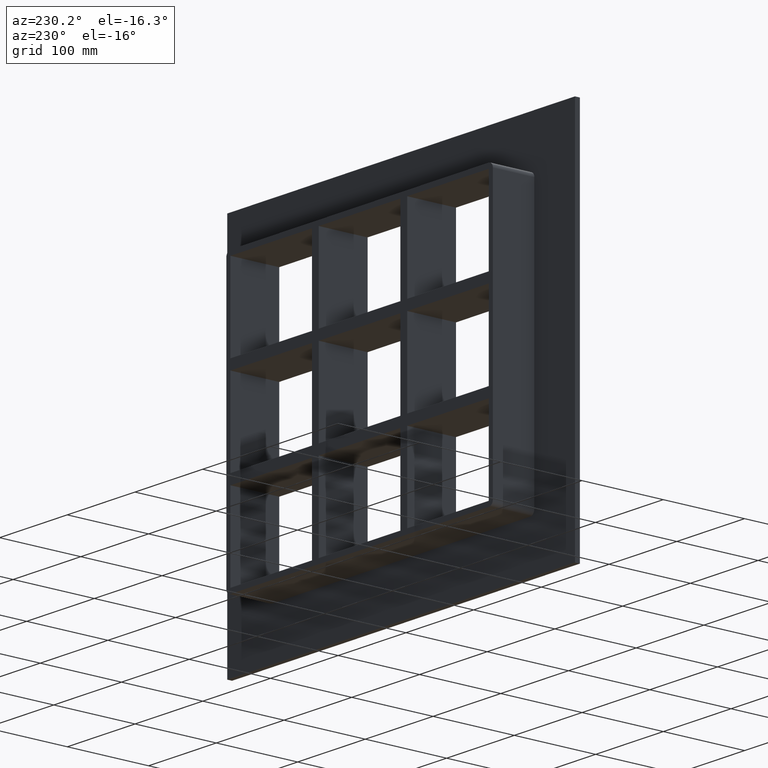
[diagram: clean part render]
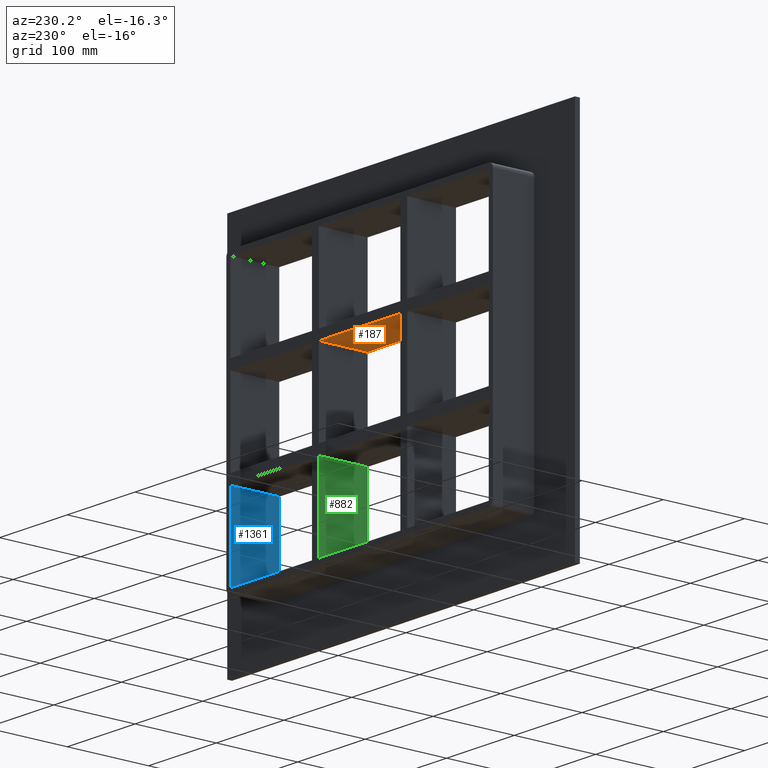
[diagram: same view with three faces highlighted in distinct colors, each labeled with its STEP entity id]
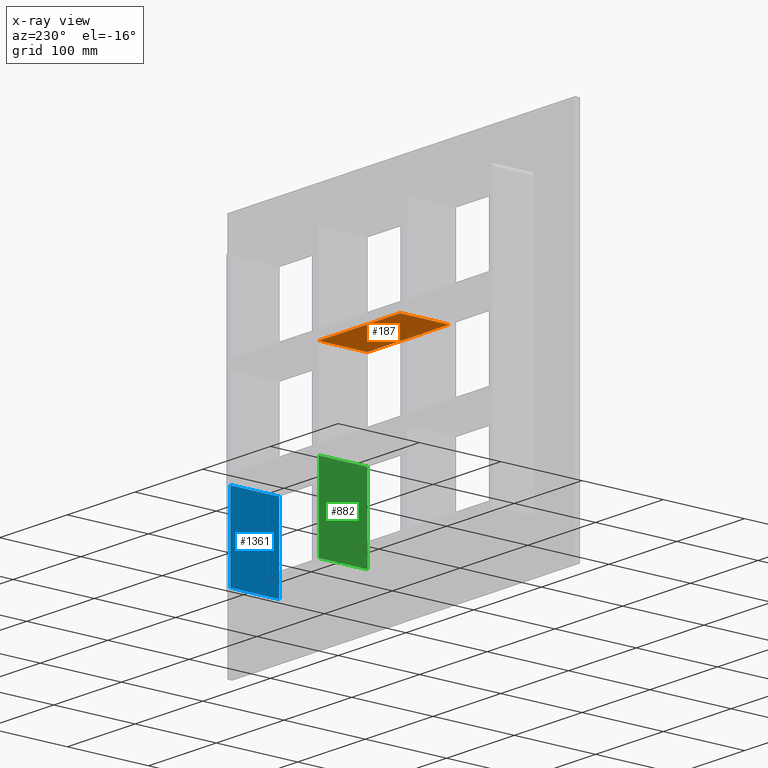
[diagram: x-ray of the same camera — body ghosted, the three highlighted faces saturated]
A machine part, auxiliary view with three faces highlighted in distinct colors.
The next image is the same camera in x-ray (body ghosted, the three faces saturated) — at least one of them is partly hidden behind the body in this view.
Their STEP definitions:

[orange] entity #187 — the highlighted planar face has unit normal (0, 0, -1).
#148=CARTESIAN_POINT('',(190.74999999999818,-3.0,50.49999999999072));
#149=DIRECTION('',(0.0,0.0,-1.0));
#150=DIRECTION('',(-1.0,0.0,0.0));
#151=AXIS2_PLACEMENT_3D('',#148,#149,#150);
#152=PLANE('',#151);
#153=CARTESIAN_POINT('',(60.249999999998671,-3.0,50.499999999990692));
#154=VERTEX_POINT('',#153);
#155=CARTESIAN_POINT('',(60.249999999998671,57.0,50.499999999990692));
#156=VERTEX_POINT('',#155);
#157=CARTESIAN_POINT('',(60.249999999998671,-3.0,50.499999999990671));
#158=DIRECTION('',(0.0,1.0,0.0));
#159=VECTOR('',#158,60.0);
#160=LINE('',#157,#159);
#161=EDGE_CURVE('',#154,#156,#160,.T.);
#162=ORIENTED_EDGE('',*,*,#161,.F.);
#163=CARTESIAN_POINT('',(-60.249999999996362,-3.0,50.499999999990663));
#164=VERTEX_POINT('',#163);
#165=CARTESIAN_POINT('',(60.249999999998664,-3.0,50.499999999990692));
#166=DIRECTION('',(-1.0,0.0,0.0));
#167=VECTOR('',#166,120.49999999999503);
#168=LINE('',#165,#167);
#169=EDGE_CURVE('',#154,#164,#168,.T.);
#170=ORIENTED_EDGE('',*,*,#169,.T.);
#171=CARTESIAN_POINT('',(-60.249999999996362,57.0,50.499999999990663));
#172=VERTEX_POINT('',#171);
#173=CARTESIAN_POINT('',(-60.249999999996355,57.0,50.499999999990656));
#174=DIRECTION('',(0.0,-1.0,0.0));
#175=VECTOR('',#174,60.0);
#176=LINE('',#173,#175);
#177=EDGE_CURVE('',#172,#164,#176,.T.);
#178=ORIENTED_EDGE('',*,*,#177,.F.);
#179=CARTESIAN_POINT('',(60.249999999998664,57.0,50.499999999990692));
#180=DIRECTION('',(-1.0,0.0,0.0));
#181=VECTOR('',#180,120.49999999999503);
#182=LINE('',#179,#181);
#183=EDGE_CURVE('',#156,#172,#182,.T.);
#184=ORIENTED_EDGE('',*,*,#183,.F.);
#185=EDGE_LOOP('',(#162,#170,#178,#184));
#186=FACE_OUTER_BOUND('',#185,.T.);
#187=ADVANCED_FACE('',(#186),#152,.T.);

[blue] entity #1361 — the highlighted planar face has unit normal (1, 0, 0).
#795=CARTESIAN_POINT('',(190.75000000000006,57.0,-163.50000000000006));
#796=VERTEX_POINT('',#795);
#803=CARTESIAN_POINT('',(190.74999999999818,57.0,-62.500000000009294));
#804=VERTEX_POINT('',#803);
#805=CARTESIAN_POINT('',(190.75000000000006,57.0,-163.50000000000003));
#806=DIRECTION('',(0.0,0.0,1.0));
#807=VECTOR('',#806,100.99999999999073);
#808=LINE('',#805,#807);
#809=EDGE_CURVE('',#796,#804,#808,.T.);
#968=CARTESIAN_POINT('',(190.75000000000006,-3.0,-163.50000000000006));
#969=VERTEX_POINT('',#968);
#976=CARTESIAN_POINT('',(190.75000000000006,56.999999999999993,-163.50000000000006));
#977=DIRECTION('',(0.0,-1.0,0.0));
#978=VECTOR('',#977,59.999999999999993);
#979=LINE('',#976,#978);
#980=EDGE_CURVE('',#796,#969,#979,.T.);
#1160=CARTESIAN_POINT('',(190.74999999999818,-3.0,-62.500000000009294));
#1161=VERTEX_POINT('',#1160);
#1168=CARTESIAN_POINT('',(190.75000000000006,-3.0,-62.500000000009294));
#1169=DIRECTION('',(0.0,0.0,-1.0));
#1170=VECTOR('',#1169,100.99999999999073);
#1171=LINE('',#1168,#1170);
#1172=EDGE_CURVE('',#1161,#969,#1171,.T.);
#1219=CARTESIAN_POINT('',(190.75000000000006,-3.0,-62.50000000000928));
#1220=DIRECTION('',(0.0,1.0,0.0));
#1221=VECTOR('',#1220,60.000000000000007);
#1222=LINE('',#1219,#1221);
#1223=EDGE_CURVE('',#1161,#804,#1222,.T.);
#1350=CARTESIAN_POINT('',(190.75000000000006,0.0,163.50000000000006));
#1351=DIRECTION('',(1.0,0.0,0.0));
#1352=DIRECTION('',(0.0,0.0,-1.0));
#1353=AXIS2_PLACEMENT_3D('',#1350,#1351,#1352);
#1354=PLANE('',#1353);
#1355=ORIENTED_EDGE('',*,*,#1223,.T.);
#1356=ORIENTED_EDGE('',*,*,#809,.F.);
#1357=ORIENTED_EDGE('',*,*,#980,.T.);
#1358=ORIENTED_EDGE('',*,*,#1172,.F.);
#1359=EDGE_LOOP('',(#1355,#1356,#1357,#1358));
#1360=FACE_OUTER_BOUND('',#1359,.T.);
#1361=ADVANCED_FACE('',(#1360),#1354,.F.);

[green] entity #882 — the highlighted planar face has unit normal (-1, 0, 0).
#748=CARTESIAN_POINT('',(60.249999999998707,57.0,-163.50000000000006));
#749=VERTEX_POINT('',#748);
#750=CARTESIAN_POINT('',(60.249999999998693,57.0,-62.500000000009322));
#751=VERTEX_POINT('',#750);
#752=CARTESIAN_POINT('',(60.249999999998707,57.0,-163.50000000000006));
#753=DIRECTION('',(0.0,0.0,1.0));
#754=VECTOR('',#753,100.99999999999072);
#755=LINE('',#752,#754);
#756=EDGE_CURVE('',#749,#751,#755,.T.);
#852=CARTESIAN_POINT('',(60.249999999998707,-3.0,-163.50000000000006));
#853=DIRECTION('',(-1.0,0.0,0.0));
#854=DIRECTION('',(0.0,0.0,1.0));
#855=AXIS2_PLACEMENT_3D('',#852,#853,#854);
#856=PLANE('',#855);
#857=CARTESIAN_POINT('',(60.249999999998693,-3.0,-62.500000000009322));
#858=VERTEX_POINT('',#857);
#859=CARTESIAN_POINT('',(60.249999999998693,57.0,-62.500000000009315));
#860=DIRECTION('',(0.0,-1.0,0.0));
#861=VECTOR('',#860,60.0);
#862=LINE('',#859,#861);
#863=EDGE_CURVE('',#751,#858,#862,.T.);
#864=ORIENTED_EDGE('',*,*,#863,.F.);
#865=ORIENTED_EDGE('',*,*,#756,.F.);
#866=CARTESIAN_POINT('',(60.249999999998707,-3.0,-163.50000000000006));
#867=VERTEX_POINT('',#866);
#868=CARTESIAN_POINT('',(60.249999999998707,-3.0,-163.50000000000006));
#869=DIRECTION('',(0.0,1.0,0.0));
#870=VECTOR('',#869,60.000000000000007);
#871=LINE('',#868,#870);
#872=EDGE_CURVE('',#867,#749,#871,.T.);
#873=ORIENTED_EDGE('',*,*,#872,.F.);
#874=CARTESIAN_POINT('',(60.249999999998707,-3.0,-163.50000000000006));
#875=DIRECTION('',(0.0,0.0,1.0));
#876=VECTOR('',#875,100.99999999999072);
#877=LINE('',#874,#876);
#878=EDGE_CURVE('',#867,#858,#877,.T.);
#879=ORIENTED_EDGE('',*,*,#878,.T.);
#880=EDGE_LOOP('',(#864,#865,#873,#879));
#881=FACE_OUTER_BOUND('',#880,.T.);
#882=ADVANCED_FACE('',(#881),#856,.T.);